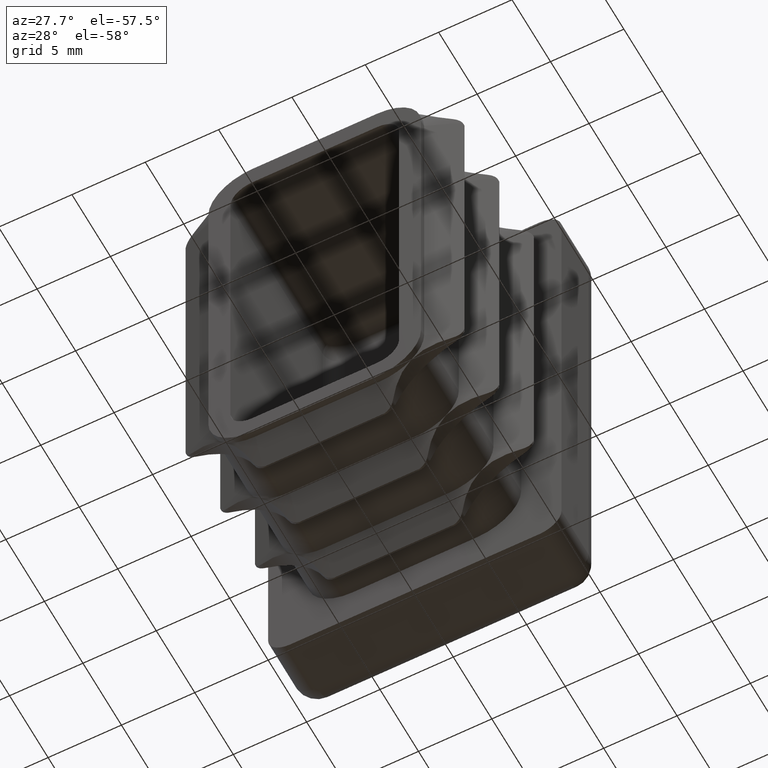
[diagram: clean part render]
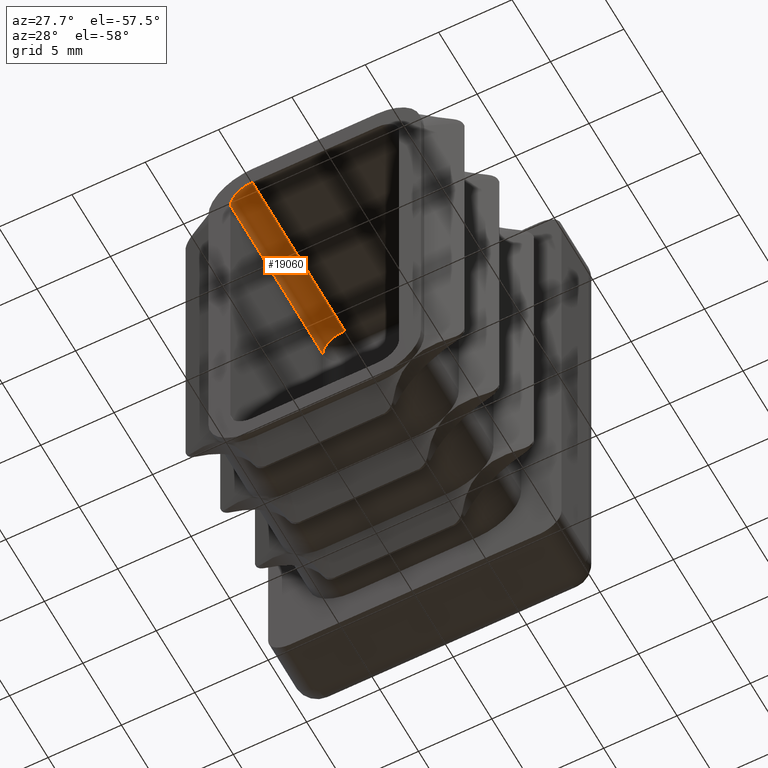
[diagram: same view with one face highlighted and labeled with its STEP entity id]
A machine part, auxiliary view. The second image highlights one B-rep face of the part: STEP entity #19060.
In plain terms, the highlighted cylindrical surface (edge-blend (fillet) strip) has radius 1.5 mm, axis along (-0, 1, -0).
Its self-contained STEP definition (entity closure, byte-faithful):
#212 = ORIENTED_EDGE ( 'NONE', *, *, #15675, .T. ) ;
#1155 = VERTEX_POINT ( 'NONE', #18620 ) ;
#1649 = EDGE_CURVE ( 'NONE', #1155, #2557, #11041, .T. ) ;
#2048 = CARTESIAN_POINT ( 'NONE',  ( -4.250000000000002665, -0.9999999999999956701, 13.25000000000000178 ) ) ;
#2557 = VERTEX_POINT ( 'NONE', #5309 ) ;
#3717 = EDGE_CURVE ( 'NONE', #12848, #1155, #4507, .T. ) ;
#3792 = DIRECTION ( 'NONE',  ( -0.000000000000000000, 1.000000000000000000, -0.000000000000000000 ) ) ;
#4507 = CIRCLE ( 'NONE', #17700, 1.500000000000001332 ) ;
#5162 = ORIENTED_EDGE ( 'NONE', *, *, #1649, .T. ) ;
#5309 = CARTESIAN_POINT ( 'NONE',  ( -5.750000000000003553, -0.9999999999999956701, 11.74999999999999822 ) ) ;
#5425 = DIRECTION ( 'NONE',  ( 0.000000000000000000, 0.000000000000000000, 1.000000000000000000 ) ) ;
#5681 = DIRECTION ( 'NONE',  ( -0.000000000000000000, 1.000000000000000000, -0.000000000000000000 ) ) ;
#7499 = DIRECTION ( 'NONE',  ( 0.000000000000000000, -1.000000000000000000, 0.000000000000000000 ) ) ;
#7560 = CARTESIAN_POINT ( 'NONE',  ( -4.250000000000002665, -13.00000000000000000, 11.75000000000000000 ) ) ;
#8043 = ORIENTED_EDGE ( 'NONE', *, *, #10265, .F. ) ;
#8176 = CARTESIAN_POINT ( 'NONE',  ( -4.250000000000002665, -13.00000000000000000, 13.25000000000000178 ) ) ;
#8466 = DIRECTION ( 'NONE',  ( 0.000000000000000000, 1.000000000000000000, 0.000000000000000000 ) ) ;
#9768 = AXIS2_PLACEMENT_3D ( 'NONE', #11695, #14709, #19162 ) ;
#10002 = FACE_OUTER_BOUND ( 'NONE', #10461, .T. ) ;
#10265 = EDGE_CURVE ( 'NONE', #12848, #19301, #18851, .T. ) ;
#10461 = EDGE_LOOP ( 'NONE', ( #5162, #212, #8043, #17070 ) ) ;
#11041 = LINE ( 'NONE', #16357, #17657 ) ;
#11570 = CARTESIAN_POINT ( 'NONE',  ( -4.250000000000002665, -0.9999999999999922284, 11.75000000000000000 ) ) ;
#11695 = CARTESIAN_POINT ( 'NONE',  ( -4.250000000000002665, -13.00000000000000000, 11.75000000000000000 ) ) ;
#12204 = CIRCLE ( 'NONE', #17723, 1.500000000000001332 ) ;
#12848 = VERTEX_POINT ( 'NONE', #18348 ) ;
#14709 = DIRECTION ( 'NONE',  ( -0.000000000000000000, 1.000000000000000000, -0.000000000000000000 ) ) ;
#15520 = VECTOR ( 'NONE', #3792, 1000.000000000000000 ) ;
#15675 = EDGE_CURVE ( 'NONE', #2557, #19301, #12204, .T. ) ;
#16357 = CARTESIAN_POINT ( 'NONE',  ( -5.750000000000003553, -13.00000000000000000, 11.74999999999999822 ) ) ;
#17070 = ORIENTED_EDGE ( 'NONE', *, *, #3717, .T. ) ;
#17657 = VECTOR ( 'NONE', #5681, 1000.000000000000000 ) ;
#17700 = AXIS2_PLACEMENT_3D ( 'NONE', #7560, #7499, #18097 ) ;
#17723 = AXIS2_PLACEMENT_3D ( 'NONE', #11570, #8466, #5425 ) ;
#18097 = DIRECTION ( 'NONE',  ( 0.000000000000000000, 0.000000000000000000, 1.000000000000000000 ) ) ;
#18348 = CARTESIAN_POINT ( 'NONE',  ( -4.250000000000002665, -13.00000000000000000, 13.25000000000000178 ) ) ;
#18620 = CARTESIAN_POINT ( 'NONE',  ( -5.750000000000003553, -13.00000000000000000, 11.74999999999999822 ) ) ;
#18851 = LINE ( 'NONE', #8176, #15520 ) ;
#19060 = ADVANCED_FACE ( 'NONE', ( #10002 ), #19246, .F. ) ;
#19162 = DIRECTION ( 'NONE',  ( 0.000000000000000000, 0.000000000000000000, 1.000000000000000000 ) ) ;
#19246 = CYLINDRICAL_SURFACE ( 'NONE', #9768, 1.500000000000001332 ) ;
#19301 = VERTEX_POINT ( 'NONE', #2048 ) ;